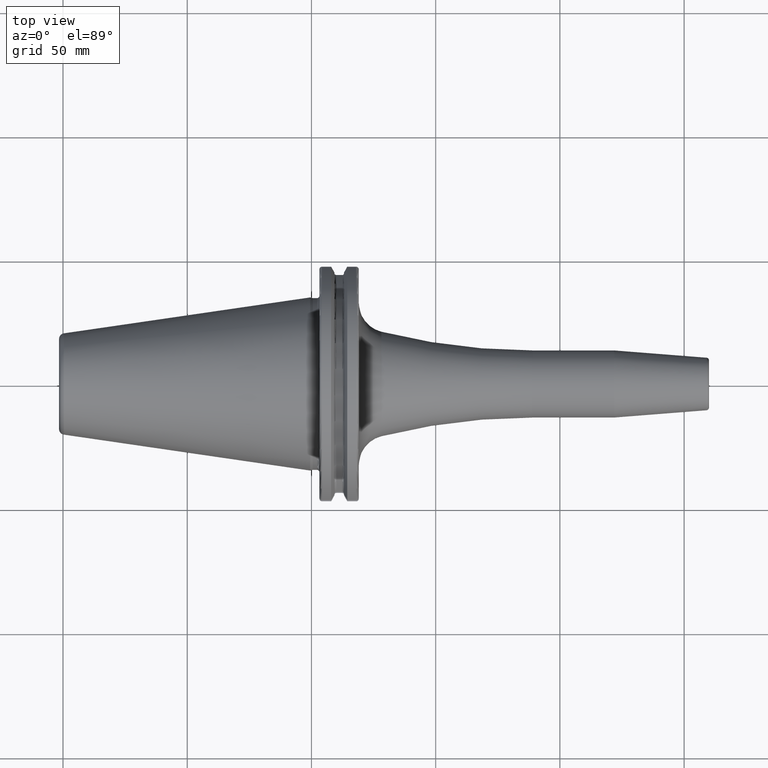
[diagram: clean part render]
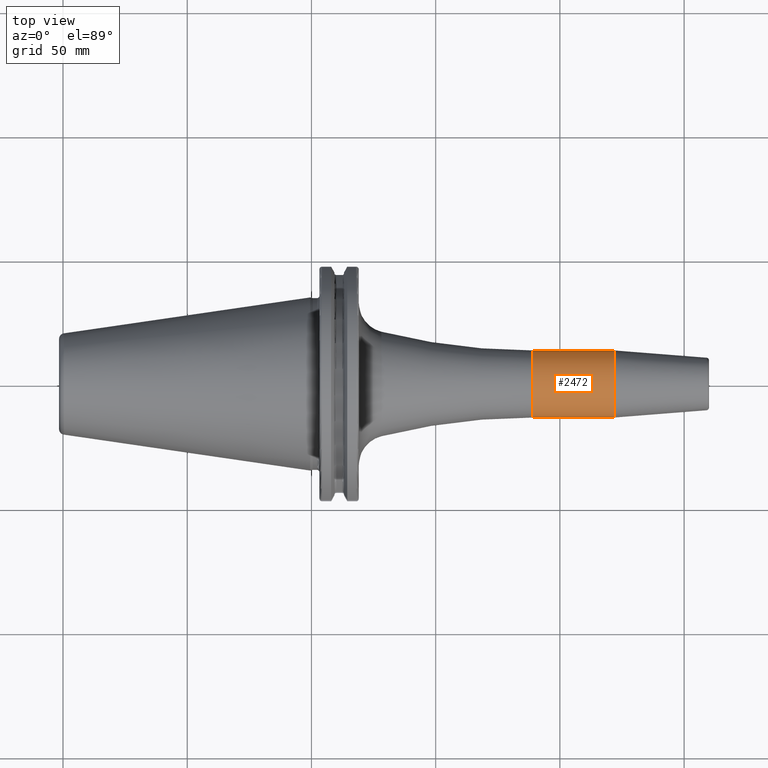
[diagram: same view with one face highlighted and labeled with its STEP entity id]
A machine part, top view. The second image highlights one B-rep face of the part: STEP entity #2472.
In plain terms, the highlighted cylindrical surface (edge-blend (fillet) strip) has radius 13.5 mm, axis along (1, 0, 0).
Its self-contained STEP definition (entity closure, byte-faithful):
#931=DIRECTION('',(-1.E0,0.E0,0.E0));
#932=VECTOR('',#931,3.283138579148E1);
#933=CARTESIAN_POINT('',(1.218813857915E2,-1.35E1,0.E0));
#934=LINE('',#933,#932);
#940=DIRECTION('',(-1.E0,0.E0,0.E0));
#941=VECTOR('',#940,3.283138579148E1);
#942=CARTESIAN_POINT('',(1.218813857915E2,1.35E1,0.E0));
#943=LINE('',#942,#941);
#944=CARTESIAN_POINT('',(8.905E1,0.E0,0.E0));
#945=DIRECTION('',(1.E0,0.E0,0.E0));
#946=DIRECTION('',(0.E0,1.E0,0.E0));
#947=AXIS2_PLACEMENT_3D('',#944,#945,#946);
#949=CARTESIAN_POINT('',(1.218813857915E2,0.E0,0.E0));
#950=DIRECTION('',(1.E0,0.E0,0.E0));
#951=DIRECTION('',(0.E0,1.E0,0.E0));
#952=AXIS2_PLACEMENT_3D('',#949,#950,#951);
#1452=CARTESIAN_POINT('',(1.218813857915E2,1.35E1,0.E0));
#1453=CARTESIAN_POINT('',(1.218813857915E2,-1.35E1,0.E0));
#1454=VERTEX_POINT('',#1452);
#1455=VERTEX_POINT('',#1453);
#1472=CARTESIAN_POINT('',(8.905E1,1.35E1,0.E0));
#1473=CARTESIAN_POINT('',(8.905E1,-1.35E1,0.E0));
#1474=VERTEX_POINT('',#1472);
#1475=VERTEX_POINT('',#1473);
#2460=CARTESIAN_POINT('',(1.20025E1,0.E0,0.E0));
#2461=DIRECTION('',(1.E0,0.E0,0.E0));
#2462=DIRECTION('',(0.E0,-1.E0,0.E0));
#2463=AXIS2_PLACEMENT_3D('',#2460,#2461,#2462);
#2464=CYLINDRICAL_SURFACE('',#2463,1.35E1);
#2465=ORIENTED_EDGE('',*,*,#2425,.F.);
#2466=ORIENTED_EDGE('',*,*,#2455,.F.);
#2468=ORIENTED_EDGE('',*,*,#2467,.T.);
#2469=ORIENTED_EDGE('',*,*,#2451,.T.);
#2470=EDGE_LOOP('',(#2465,#2466,#2468,#2469));
#2471=FACE_OUTER_BOUND('',#2470,.F.);
#2472=ADVANCED_FACE('',(#2471),#2464,.T.);
#948=CIRCLE('',#947,1.35E1);
#953=CIRCLE('',#952,1.35E1);
#2425=EDGE_CURVE('',#1474,#1475,#948,.T.);
#2451=EDGE_CURVE('',#1455,#1475,#934,.T.);
#2455=EDGE_CURVE('',#1454,#1474,#943,.T.);
#2467=EDGE_CURVE('',#1454,#1455,#953,.T.);